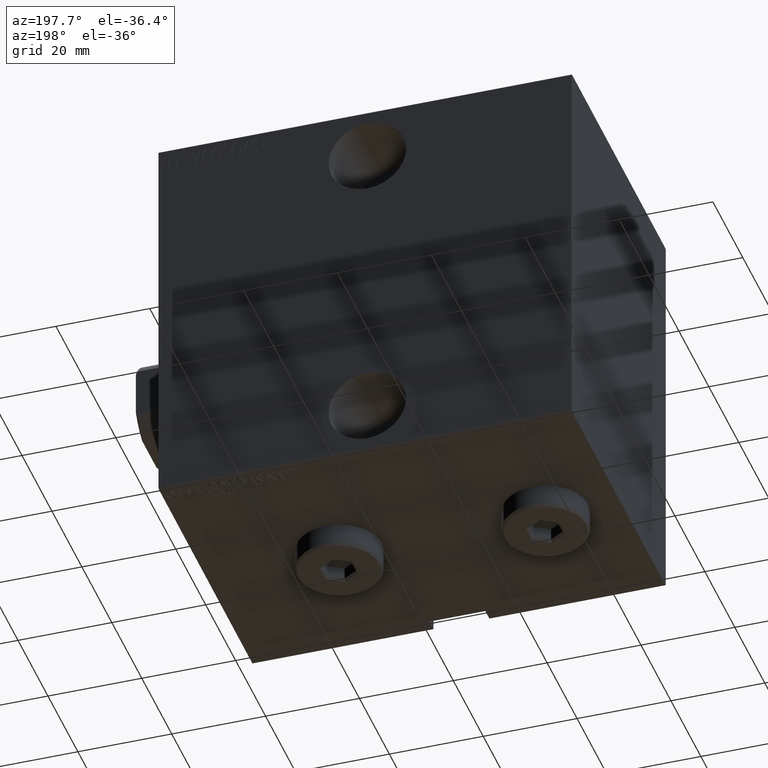
[diagram: clean part render]
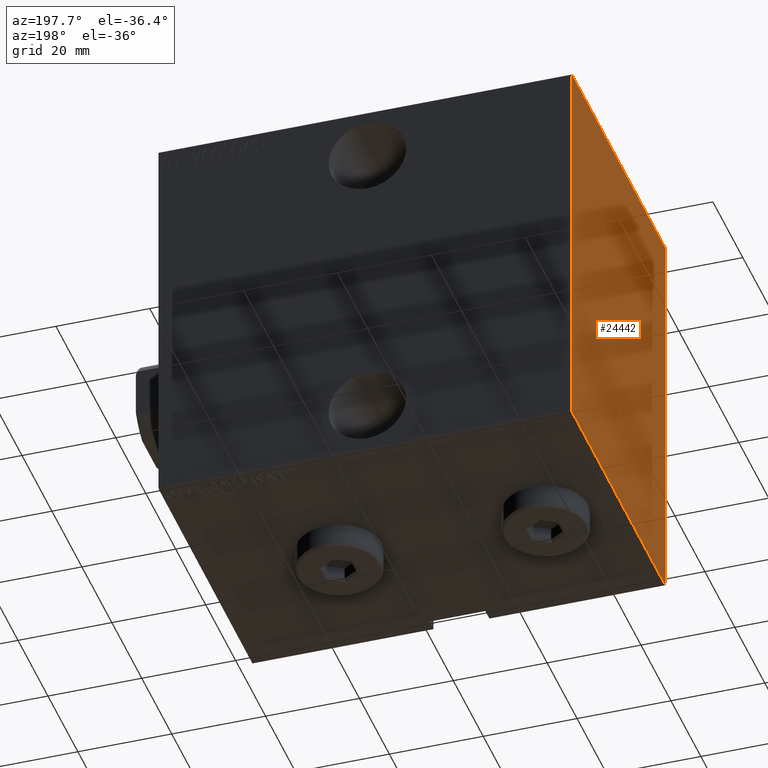
[diagram: same view with one face highlighted and labeled with its STEP entity id]
A machine part, auxiliary view. The second image highlights one B-rep face of the part: STEP entity #24442.
In plain terms, the highlighted planar face has unit normal (-1, 0, 0).
Its self-contained STEP definition (entity closure, byte-faithful):
#135 = VECTOR ( 'NONE', #15381, 1000.000000000000000 ) ;
#471 = VERTEX_POINT ( 'NONE', #33009 ) ;
#569 = ORIENTED_EDGE ( 'NONE', *, *, #15155, .T. ) ;
#1157 = VECTOR ( 'NONE', #31878, 1000.000000000000000 ) ;
#2099 = VECTOR ( 'NONE', #15036, 1000.000000000000000 ) ;
#2987 = ORIENTED_EDGE ( 'NONE', *, *, #36249, .T. ) ;
#3069 = DIRECTION ( 'NONE',  ( 0.000000000000000000, -1.632680918566406300E-16, 1.000000000000000000 ) ) ;
#3771 = VERTEX_POINT ( 'NONE', #12378 ) ;
#5365 = VECTOR ( 'NONE', #24433, 1000.000000000000000 ) ;
#6418 = CARTESIAN_POINT ( 'NONE',  ( 88.00000000000000000, 31.50000000000001421, -42.50000000000000711 ) ) ;
#6589 = ORIENTED_EDGE ( 'NONE', *, *, #8512, .T. ) ;
#6615 = EDGE_CURVE ( 'NONE', #35242, #37936, #35399, .T. ) ;
#6808 = ORIENTED_EDGE ( 'NONE', *, *, #14061, .T. ) ;
#6854 = DIRECTION ( 'NONE',  ( 1.000000000000000000, 0.000000000000000000, 0.000000000000000000 ) ) ;
#7471 = CARTESIAN_POINT ( 'NONE',  ( 88.00000000000000000, 31.50000000000001421, -42.20000000000000284 ) ) ;
#8512 = EDGE_CURVE ( 'NONE', #3771, #26465, #34061, .T. ) ;
#8726 = CARTESIAN_POINT ( 'NONE',  ( 88.00000000000000000, 31.50000000000000000, 42.50000000000000000 ) ) ;
#9167 = LINE ( 'NONE', #8726, #1157 ) ;
#10246 = CARTESIAN_POINT ( 'NONE',  ( 88.00000000000000000, 31.19999999999999218, 42.50000000000000000 ) ) ;
#10860 = LINE ( 'NONE', #17777, #5365 ) ;
#11258 = EDGE_CURVE ( 'NONE', #12800, #35242, #17409, .T. ) ;
#11998 = DIRECTION ( 'NONE',  ( -0.000000000000000000, 0.7071067811865556774, -0.7071067811865393571 ) ) ;
#12378 = CARTESIAN_POINT ( 'NONE',  ( 88.00000000000000000, 31.20000000000001350, -42.50000000000000711 ) ) ;
#12800 = VERTEX_POINT ( 'NONE', #43797 ) ;
#14061 = EDGE_CURVE ( 'NONE', #26465, #471, #36900, .T. ) ;
#14378 = LINE ( 'NONE', #41740, #2099 ) ;
#15036 = DIRECTION ( 'NONE',  ( -0.000000000000000000, -0.7071067811865721087, 0.7071067811865230368 ) ) ;
#15155 = EDGE_CURVE ( 'NONE', #17330, #3771, #10860, .T. ) ;
#15381 = DIRECTION ( 'NONE',  ( 0.000000000000000000, 0.000000000000000000, -1.000000000000000000 ) ) ;
#15955 = VECTOR ( 'NONE', #41223, 1000.000000000000114 ) ;
#16375 = VECTOR ( 'NONE', #11998, 1000.000000000000000 ) ;
#17330 = VERTEX_POINT ( 'NONE', #22797 ) ;
#17409 = LINE ( 'NONE', #23842, #15955 ) ;
#17777 = CARTESIAN_POINT ( 'NONE',  ( 88.00000000000000000, -31.49999999999999289, -42.50000000000000711 ) ) ;
#17838 = CARTESIAN_POINT ( 'NONE',  ( 88.00000000000000000, -31.49999999999999289, 42.49999999999998579 ) ) ;
#19413 = VECTOR ( 'NONE', #26719, 1000.000000000000000 ) ;
#19521 = CARTESIAN_POINT ( 'NONE',  ( 88.00000000000000000, -31.49999999999999289, -42.20000000000000995 ) ) ;
#21848 = AXIS2_PLACEMENT_3D ( 'NONE', #41798, #6854, #34004 ) ;
#22160 = EDGE_CURVE ( 'NONE', #36453, #12800, #9167, .T. ) ;
#22797 = CARTESIAN_POINT ( 'NONE',  ( 88.00000000000000000, -31.19999999999998508, -42.50000000000000711 ) ) ;
#23842 = CARTESIAN_POINT ( 'NONE',  ( 88.00000000000000000, -36.85000000000034248, 36.84999999999949694 ) ) ;
#24433 = DIRECTION ( 'NONE',  ( 0.000000000000000000, 1.000000000000000000, 0.000000000000000000 ) ) ;
#24442 = ADVANCED_FACE ( 'NONE', ( #41355 ), #28207, .T. ) ;
#25442 = ORIENTED_EDGE ( 'NONE', *, *, #22160, .T. ) ;
#26465 = VERTEX_POINT ( 'NONE', #7471 ) ;
#26633 = VECTOR ( 'NONE', #3069, 1000.000000000000000 ) ;
#26719 = DIRECTION ( 'NONE',  ( -0.000000000000000000, 0.7071067811865393571, 0.7071067811865556774 ) ) ;
#27371 = CARTESIAN_POINT ( 'NONE',  ( 88.00000000000000000, 36.85000000000037090, -36.84999999999952536 ) ) ;
#28207 = PLANE ( 'NONE',  #21848 ) ;
#28779 = ORIENTED_EDGE ( 'NONE', *, *, #42168, .T. ) ;
#30705 = ORIENTED_EDGE ( 'NONE', *, *, #11258, .T. ) ;
#31434 = CARTESIAN_POINT ( 'NONE',  ( 88.00000000000000000, -31.49999999999999289, 42.19999999999996732 ) ) ;
#31878 = DIRECTION ( 'NONE',  ( 0.000000000000000000, -1.000000000000000000, -2.202823461557850341E-16 ) ) ;
#32031 = CARTESIAN_POINT ( 'NONE',  ( 88.00000000000000000, -36.84999999999963904, -36.85000000000048459 ) ) ;
#32466 = LINE ( 'NONE', #32031, #16375 ) ;
#33009 = CARTESIAN_POINT ( 'NONE',  ( 88.00000000000000000, 31.50000000000000000, 42.20000000000001705 ) ) ;
#34004 = DIRECTION ( 'NONE',  ( 0.000000000000000000, 0.000000000000000000, -1.000000000000000000 ) ) ;
#34061 = LINE ( 'NONE', #27371, #19413 ) ;
#34705 = ORIENTED_EDGE ( 'NONE', *, *, #6615, .T. ) ;
#35242 = VERTEX_POINT ( 'NONE', #31434 ) ;
#35399 = LINE ( 'NONE', #17838, #135 ) ;
#36249 = EDGE_CURVE ( 'NONE', #471, #36453, #14378, .T. ) ;
#36453 = VERTEX_POINT ( 'NONE', #10246 ) ;
#36900 = LINE ( 'NONE', #6418, #26633 ) ;
#37936 = VERTEX_POINT ( 'NONE', #19521 ) ;
#38727 = EDGE_LOOP ( 'NONE', ( #569, #6589, #6808, #2987, #25442, #30705, #34705, #28779 ) ) ;
#41223 = DIRECTION ( 'NONE',  ( 0.000000000000000000, -0.7071067811865393571, -0.7071067811865556774 ) ) ;
#41355 = FACE_OUTER_BOUND ( 'NONE', #38727, .T. ) ;
#41740 = CARTESIAN_POINT ( 'NONE',  ( 88.00000000000000000, 36.84999999999892140, 36.85000000000147224 ) ) ;
#41798 = CARTESIAN_POINT ( 'NONE',  ( 88.00000000000000000, 0.000000000000000000, 0.000000000000000000 ) ) ;
#42168 = EDGE_CURVE ( 'NONE', #37936, #17330, #32466, .T. ) ;
#43797 = CARTESIAN_POINT ( 'NONE',  ( 88.00000000000000000, -31.19999999999997797, 42.49999999999998579 ) ) ;